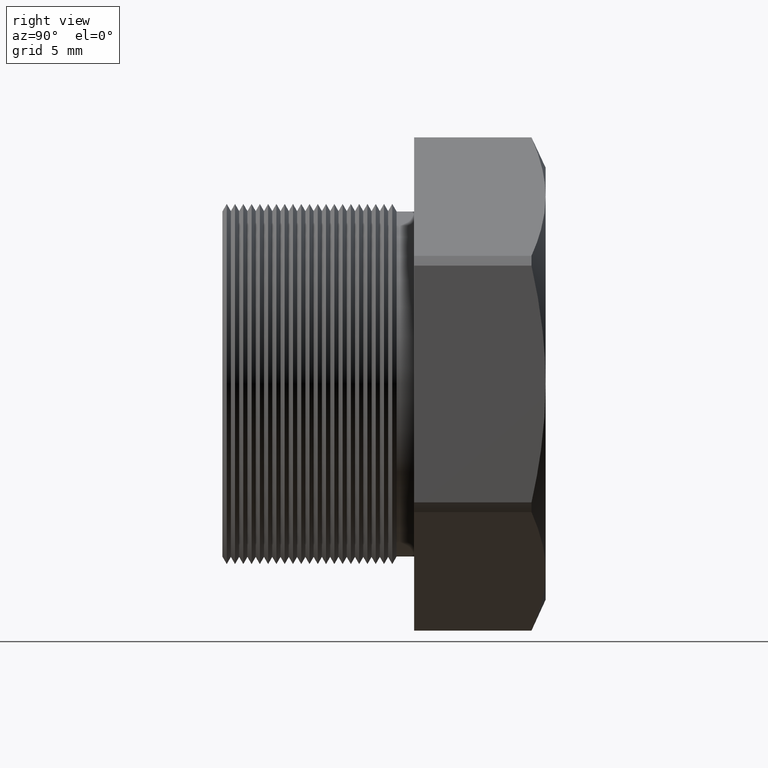
[diagram: clean part render]
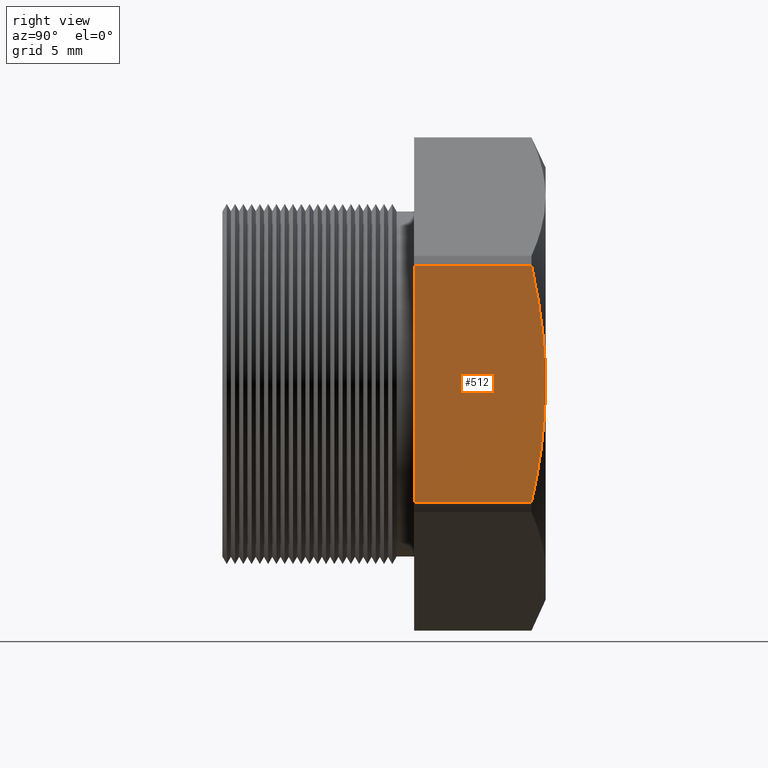
[diagram: same view with one face highlighted and labeled with its STEP entity id]
A machine part, right view. The second image highlights one B-rep face of the part: STEP entity #512.
In plain terms, the highlighted planar face has unit normal (1, -0, 0).
Its self-contained STEP definition (entity closure, byte-faithful):
#327 = VERTEX_POINT ( 'NONE', #1817 ) ;
#342 = VERTEX_POINT ( 'NONE', #1853 ) ;
#373 = VERTEX_POINT ( 'NONE', #1914 ) ;
#375 = EDGE_CURVE ( 'NONE', #373, #376, #1913, .T. ) ;
#376 = VERTEX_POINT ( 'NONE', #1909 ) ;
#386 = EDGE_CURVE ( 'NONE', #327, #387, #1955, .T. ) ;
#387 = VERTEX_POINT ( 'NONE', #1951 ) ;
#437 = ORIENTED_EDGE ( 'NONE', *, *, #438, .T. ) ;
#438 = EDGE_CURVE ( 'NONE', #373, #342, #2038, .T. ) ;
#439 = ORIENTED_EDGE ( 'NONE', *, *, #440, .T. ) ;
#440 = EDGE_CURVE ( 'NONE', #342, #387, #2083, .T. ) ;
#441 = ORIENTED_EDGE ( 'NONE', *, *, #386, .F. ) ;
#442 = ORIENTED_EDGE ( 'NONE', *, *, #443, .F. ) ;
#443 = EDGE_CURVE ( 'NONE', #376, #327, #2082, .T. ) ;
#512 = ADVANCED_FACE ( 'NONE', ( #2252 ), #2251, .T. ) ;
#513 = EDGE_LOOP ( 'NONE', ( #514, #437, #439, #441, #442 ) ) ;
#514 = ORIENTED_EDGE ( 'NONE', *, *, #375, .F. ) ;
#1817 = CARTESIAN_POINT ( 'NONE',  ( 0.3949999999999999100, 0.1675548905829479500, 0.2162061284977834200 ) ) ;
#1853 = CARTESIAN_POINT ( 'NONE',  ( 0.3949999999999999600, 0.4075548905829479200, 1.182924880895400500E-016 ) ) ;
#1909 = CARTESIAN_POINT ( 'NONE',  ( 0.3950000000000000200, 0.1675548905829479500, -0.2162061284977832000 ) ) ;
#1910 = DIRECTION ( 'NONE',  ( -0.0000000000000000000, -1.000000000000000000, -0.0000000000000000000 ) ) ;
#1911 = VECTOR ( 'NONE', #1910, 39.37007874015748100 ) ;
#1912 = CARTESIAN_POINT ( 'NONE',  ( 0.3950000000000000200, 0.0000000000000000000, -0.2162061284977832000 ) ) ;
#1913 = LINE ( 'NONE', #1912, #1911 ) ;
#1914 = CARTESIAN_POINT ( 'NONE',  ( 0.3950000000000000200, 0.3817680770869807900, -0.2162061284977874500 ) ) ;
#1951 = CARTESIAN_POINT ( 'NONE',  ( 0.3949999999999999100, 0.3817680770869766300, 0.2162061284977834200 ) ) ;
#1952 = DIRECTION ( 'NONE',  ( 0.0000000000000000000, 1.000000000000000000, 0.0000000000000000000 ) ) ;
#1953 = VECTOR ( 'NONE', #1952, 39.37007874015748100 ) ;
#1954 = CARTESIAN_POINT ( 'NONE',  ( 0.3949999999999999100, 0.0000000000000000000, 0.2162061284977834200 ) ) ;
#1955 = LINE ( 'NONE', #1954, #1953 ) ;
#2029 = CARTESIAN_POINT ( 'NONE',  ( 0.3949999999999999600, 0.4075548905829479200, 1.182924880895400500E-016 ) ) ;
#2030 = CARTESIAN_POINT ( 'NONE',  ( 0.3950000000000000200, 0.4075548905829479700, -0.03615391846087630300 ) ) ;
#2031 = CARTESIAN_POINT ( 'NONE',  ( 0.3949999999999999100, 0.4052017611603078700, -0.07226633245039768000 ) ) ;
#2032 = CARTESIAN_POINT ( 'NONE',  ( 0.3950000000000000200, 0.3963023347622854400, -0.1444172013854097800 ) ) ;
#2033 = CARTESIAN_POINT ( 'NONE',  ( 0.3949999999999999600, 0.3897427823618834200, -0.1805875945104273000 ) ) ;
#2034 = CARTESIAN_POINT ( 'NONE',  ( 0.3950000000000000200, 0.3817680770869807900, -0.2162061284977874500 ) ) ;
#2038 = B_SPLINE_CURVE_WITH_KNOTS ( 'NONE', 3,
 ( #2034, #2033, #2032, #2031, #2030, #2029 ),
 .UNSPECIFIED., .F., .F.,
 ( 4, 2, 4 ),
 ( 0.01034883581731967100, 0.01312051304980652700, 0.01589219028229338400 ),
 .UNSPECIFIED. ) ;
#2071 = VECTOR ( 'NONE', #2080, 39.37007874015748100 ) ;
#2072 = CARTESIAN_POINT ( 'NONE',  ( 0.3949999999999999100, 0.3817680770869766300, 0.2162061284977834200 ) ) ;
#2073 = CARTESIAN_POINT ( 'NONE',  ( 0.3949999999999999100, 0.3857283079575490900, 0.1985179992191863900 ) ) ;
#2074 = CARTESIAN_POINT ( 'NONE',  ( 0.3949999999999999600, 0.3893434243502194600, 0.1807051416628362400 ) ) ;
#2075 = CARTESIAN_POINT ( 'NONE',  ( 0.3949999999999999100, 0.3957261188471292700, 0.1447731166216497100 ) ) ;
#2076 = CARTESIAN_POINT ( 'NONE',  ( 0.3949999999999999100, 0.3984951459428464600, 0.1266131864777914900 ) ) ;
#2077 = CARTESIAN_POINT ( 'NONE',  ( 0.3949999999999999600, 0.4052039355878226400, 0.07230054657575603300 ) ) ;
#2078 = CARTESIAN_POINT ( 'NONE',  ( 0.3950000000000000200, 0.4075548905829479200, 0.03612954022846508900 ) ) ;
#2079 = CARTESIAN_POINT ( 'NONE',  ( 0.3949999999999999600, 0.4075548905829479200, 1.182924880895400500E-016 ) ) ;
#2080 = DIRECTION ( 'NONE',  ( -2.994746533912406700E-016, 0.0000000000000000000, 1.000000000000000000 ) ) ;
#2081 = CARTESIAN_POINT ( 'NONE',  ( 0.3949999999999999600, 0.1675548905829479500, 2.395797227129924600E-017 ) ) ;
#2082 = LINE ( 'NONE', #2081, #2071 ) ;
#2083 = B_SPLINE_CURVE_WITH_KNOTS ( 'NONE', 3,
 ( #2079, #2078, #2077, #2076, #2075, #2074, #2073, #2072 ),
 .UNSPECIFIED., .F., .F.,
 ( 4, 2, 2, 4 ),
 ( 0.01589219028229338400, 0.01866199860002303000, 0.02004690275888785400, 0.02143180691775267700 ),
 .UNSPECIFIED. ) ;
#2246 = DIRECTION ( 'NONE',  ( 2.994746533912406700E-016, 0.0000000000000000000, -1.000000000000000000 ) ) ;
#2247 = DIRECTION ( 'NONE',  ( 1.000000000000000000, -0.0000000000000000000, 2.994746533912406700E-016 ) ) ;
#2248 = AXIS2_PLACEMENT_3D ( 'NONE', #2250, #2247, #2246 ) ;
#2250 = CARTESIAN_POINT ( 'NONE',  ( 0.3950000000000000200, 0.4075548905829479700, -0.2280533563299023100 ) ) ;
#2251 = PLANE ( 'NONE',  #2248 ) ;
#2252 = FACE_OUTER_BOUND ( 'NONE', #513, .T. ) ;